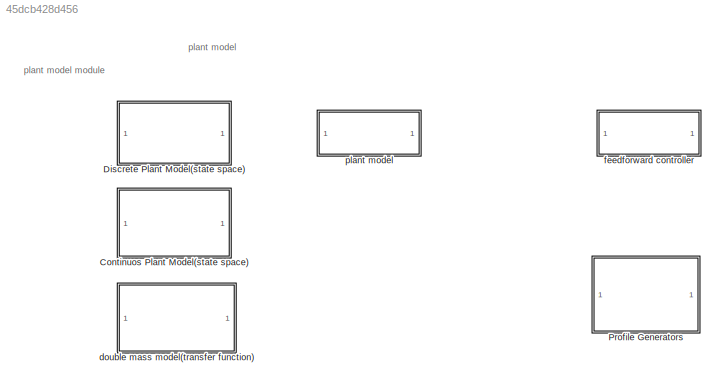
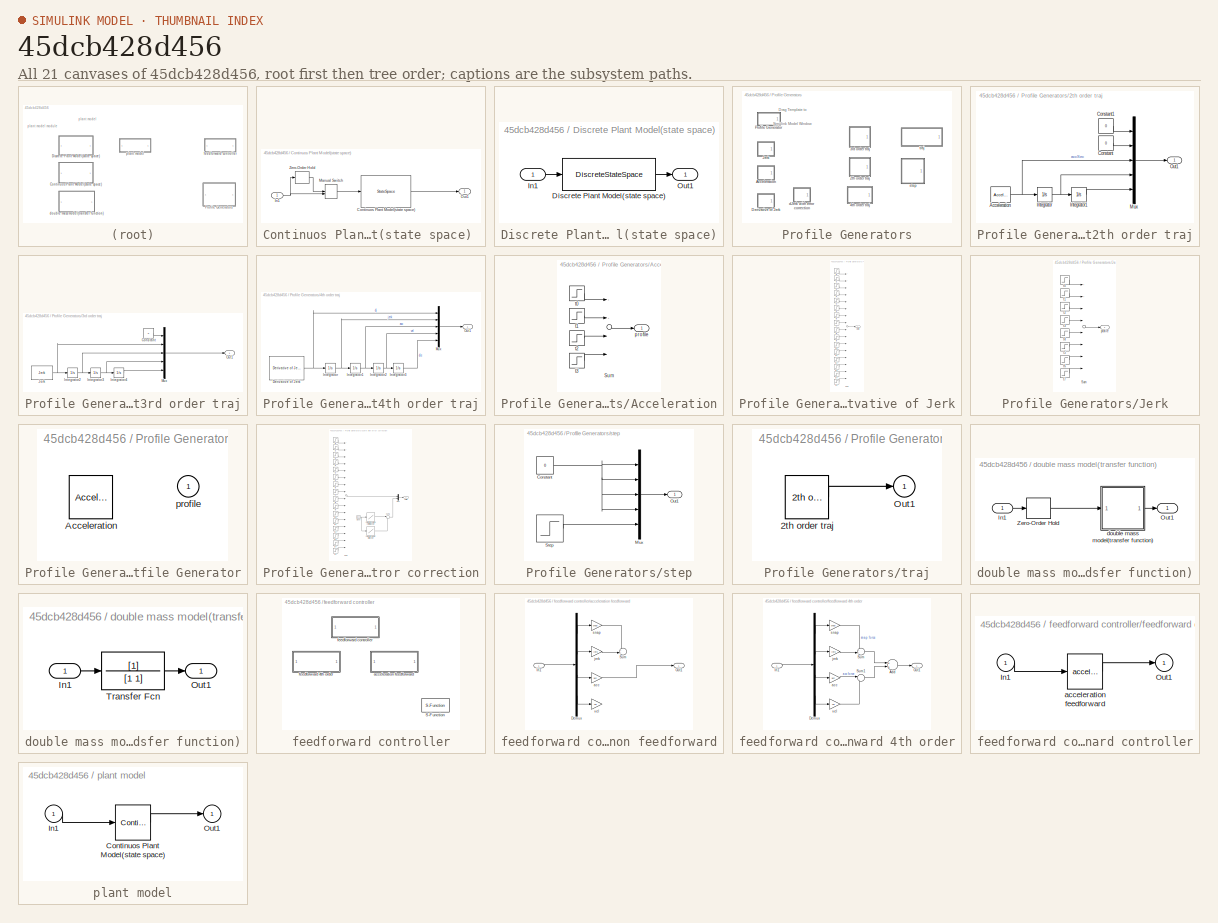
[diagram: thumbnail index - all 21 canvases of the model, root first then tree order]
MODEL slx_45dcb428d456
KIND library
CONFIG AbsTol = auto
CONFIG EnableMultiTasking = off
CONFIG FixedStep = auto
CONFIG MaxStep = auto
CONFIG MinStep = auto
CONFIG RelTol = 1e-3
CONFIG SampleTimeConstraint = Unconstrained
CONFIG Solver = VariableStepAuto
CONFIG SolverName = VariableStepAuto
CONFIG StartTime = 0.0
CONFIG StopTime = 10.0
BLOCK [SubSystem] Continuos Plant Model(state space) 
  Ports = [1, 1]
  RequestExecContextInheritance = off
  Variant = off
BLOCK [StateSpace] Continuos Plant Model(state space) /Continuos Plant Model(state space) 
  A = A
  B = B
  C = C
  D = D
  Ports = [1, 1]
  X0 = 0
BLOCK [Inport] Continuos Plant Model(state space) /In1
  IconDisplay = Port number
BLOCK [ManualSwitch] Continuos Plant Model(state space) /Manual Switch
  CurrentSetting = 0
BLOCK [Outport] Continuos Plant Model(state space) /Out1
  IconDisplay = Port number
BLOCK [ZeroOrderHold] Continuos Plant Model(state space) /Zero-Order Hold
  SampleTime = 2e-6
BLOCK [SubSystem] Discrete Plant Model(state space)
  Ports = [1, 1]
  RequestExecContextInheritance = off
  Variant = off
BLOCK [DiscreteStateSpace] Discrete Plant Model(state space)/Discrete Plant Model(state space)
  A = A_d
  B = B_d
  C = B_d
  D = D_d
  SampleTime = -1
BLOCK [Inport] Discrete Plant Model(state space)/In1
  IconDisplay = Port number
BLOCK [Outport] Discrete Plant Model(state space)/Out1
  IconDisplay = Port number
BLOCK [SubSystem] Profile Generators
  Ports = []
  RequestExecContextInheritance = off
  Variant = off
BLOCK [SubSystem] Profile Generators/2th order traj
  Ports = [0, 1]
  RequestExecContextInheritance = off
  Variant = off
BLOCK [Reference] Profile Generators/2th order traj/Acceleration  REF=model_controller/Profile Generators/Acceleration  (lib defined in slx_45dcb428d456)
  Ports = [0, 1]
  SourceBlock = model_controller/Profile Generators/Acceleration
  SourceType = 2nd Order Profile Generator
BLOCK [Constant] Profile Generators/2th order traj/Constant
  Value = 0
BLOCK [Constant] Profile Generators/2th order traj/Constant1
  Value = 0
BLOCK [Integrator] Profile Generators/2th order traj/Integrator
  Ports = [1, 1]
BLOCK [Integrator] Profile Generators/2th order traj/Integrator1
  Ports = [1, 1]
BLOCK [Mux] Profile Generators/2th order traj/Mux
  DisplayOption = bar
  Inputs = 5
  Ports = [5, 1]
BLOCK [Outport] Profile Generators/2th order traj/Out1
  IconDisplay = Port number
BLOCK [SubSystem] Profile Generators/3rd order traj
  Ports = [0, 1]
  RequestExecContextInheritance = off
  Variant = off
BLOCK [Constant] Profile Generators/3rd order traj/Constant
  Value = 0
BLOCK [Integrator] Profile Generators/3rd order traj/Integrator2
  Ports = [1, 1]
BLOCK [Integrator] Profile Generators/3rd order traj/Integrator3
  Ports = [1, 1]
BLOCK [Integrator] Profile Generators/3rd order traj/Integrator4
  Ports = [1, 1]
BLOCK [Reference] Profile Generators/3rd order traj/Jerk  REF=model_controller/Profile Generators/Jerk  (lib defined in slx_45dcb428d456)
  Ports = [0, 1]
  SourceBlock = model_controller/Profile Generators/Jerk
  SourceType = 3d Order Profile Generator
BLOCK [Mux] Profile Generators/3rd order traj/Mux
  DisplayOption = bar
  Inputs = 5
  Ports = [5, 1]
BLOCK [Outport] Profile Generators/3rd order traj/Out1
  IconDisplay = Port number
BLOCK [SubSystem] Profile Generators/4th order traj
  Ports = [0, 1]
  RequestExecContextInheritance = off
  Variant = off
BLOCK [Reference] Profile Generators/4th order traj/Derivative of Jerk  REF=model_controller/Profile Generators/Derivative of Jerk  (lib defined in slx_45dcb428d456)
  Ports = [0, 1]
  SourceBlock = model_controller/Profile Generators/Derivative of Jerk
  SourceType = 4th Order Profile Generator
BLOCK [Integrator] Profile Generators/4th order traj/Integrator
  Ports = [1, 1]
BLOCK [Integrator] Profile Generators/4th order traj/Integrator1
  Ports = [1, 1]
BLOCK [Integrator] Profile Generators/4th order traj/Integrator2
  Ports = [1, 1]
BLOCK [Integrator] Profile Generators/4th order traj/Integrator3
  Ports = [1, 1]
BLOCK [Mux] Profile Generators/4th order traj/Mux
  DisplayOption = bar
  Inputs = 5
  Ports = [5, 1]
BLOCK [Outport] Profile Generators/4th order traj/Out1
  IconDisplay = Port number
BLOCK [SubSystem] Profile Generators/Acceleration
  Ports = [0, 1]
  RequestExecContextInheritance = off
  Variant = off
BLOCK [Sum] Profile Generators/Acceleration/Sum
  Inputs = 4
  Ports = [4, 1]
BLOCK [Outport] Profile Generators/Acceleration/profile
  IconDisplay = Port number
BLOCK [Step] Profile Generators/Acceleration/t0
  After = ad(1)
  SampleTime = 0
  Time = t0
BLOCK [Step] Profile Generators/Acceleration/t1
  After = -ad(1)
  SampleTime = 0
  Time = t0+t(1)
BLOCK [Step] Profile Generators/Acceleration/t2
  After = -ad(1)
  SampleTime = 0
  Time = t0+t(1)+t(2)
BLOCK [Step] Profile Generators/Acceleration/t3
  After = ad(1)
  SampleTime = 0
  Time = t0+2*t(1)+t(2)
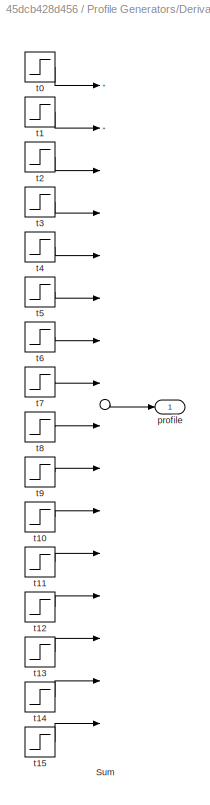
BLOCK [SubSystem] Profile Generators/Derivative of Jerk
  Ports = [0, 1]
  RequestExecContextInheritance = off
  Variant = off
BLOCK [Sum] Profile Generators/Derivative of Jerk/Sum
  Inputs = 16
  Ports = [16, 1]
BLOCK [Outport] Profile Generators/Derivative of Jerk/profile
  IconDisplay = Port number
BLOCK [Step] Profile Generators/Derivative of Jerk/t0
  After = dd(1)
  SampleTime = 0
  Time = t0
BLOCK [Step] Profile Generators/Derivative of Jerk/t1
  After = -dd(1)
  SampleTime = 0
  Time = t0+t(1)
BLOCK [Step] Profile Generators/Derivative of Jerk/t10
  After = dd(1)
  SampleTime = 0
  Time = t0+5*t(1)+3*t(2)+t(3)+t(4)
BLOCK [Step] Profile Generators/Derivative of Jerk/t11
  After = -dd(1)
  SampleTime = 0
  Time = t0+6*t(1)+3*t(2)+t(3)+t(4)
BLOCK [Step] Profile Generators/Derivative of Jerk/t12
  After = dd(1)
  SampleTime = 0
  Time = t0+6*t(1)+3*t(2)+2*t(3)+t(4)
BLOCK [Step] Profile Generators/Derivative of Jerk/t13
  After = -dd(1)
  SampleTime = 0
  Time = t0+7*t(1)+3*t(2)+2*t(3)+t(4)
BLOCK [Step] Profile Generators/Derivative of Jerk/t14
  After = -dd(1)
  SampleTime = 0
  Time = t0+7*t(1)+4*t(2)+2*t(3)+t(4)
BLOCK [Step] Profile Generators/Derivative of Jerk/t15
  After = dd(1)
  SampleTime = 0
  Time = t0+8*t(1)+4*t(2)+2*t(3)+t(4)
BLOCK [Step] Profile Generators/Derivative of Jerk/t2
  After = -dd(1)
  SampleTime = 0
  Time = t0+t(1)+t(2)
BLOCK [Step] Profile Generators/Derivative of Jerk/t3
  After = dd(1)
  SampleTime = 0
  Time = t0+2*t(1)+t(2)
BLOCK [Step] Profile Generators/Derivative of Jerk/t4
  After = -dd(1)
  SampleTime = 0
  Time = t0+2*t(1)+t(2)+t(3)
BLOCK [Step] Profile Generators/Derivative of Jerk/t5
  After = dd(1)
  SampleTime = 0
  Time = t0+3*t(1)+t(2)+t(3)
BLOCK [Step] Profile Generators/Derivative of Jerk/t6
  After = dd(1)
  SampleTime = 0
  Time = t0+3*t(1)+2*t(2)+t(3)
BLOCK [Step] Profile Generators/Derivative of Jerk/t7
  After = -dd(1)
  SampleTime = 0
  Time = t0+4*t(1)+2*t(2)+t(3)
BLOCK [Step] Profile Generators/Derivative of Jerk/t8
  After = -dd(1)
  SampleTime = 0
  Time = t0+4*t(1)+2*t(2)+t(3)+t(4)
BLOCK [Step] Profile Generators/Derivative of Jerk/t9
  After = dd(1)
  SampleTime = 0
  Time = t0+5*t(1)+2*t(2)+t(3)+t(4)
BLOCK [SubSystem] Profile Generators/Jerk
  Ports = [0, 1]
  RequestExecContextInheritance = off
  Variant = off
BLOCK [Sum] Profile Generators/Jerk/Sum
  Inputs = 8
  Ports = [8, 1]
BLOCK [Outport] Profile Generators/Jerk/profile
  IconDisplay = Port number
BLOCK [Step] Profile Generators/Jerk/t0
  After = jd(1)
  SampleTime = 0
  Time = t0
BLOCK [Step] Profile Generators/Jerk/t1
  After = -jd(1)
  SampleTime = 0
  Time = t0+t(1)
BLOCK [Step] Profile Generators/Jerk/t2
  After = -jd(1)
  SampleTime = 0
  Time = t0+t(1)+t(2)
BLOCK [Step] Profile Generators/Jerk/t3
  After = jd(1)
  SampleTime = 0
  Time = t0+2*t(1)+t(2)
BLOCK [Step] Profile Generators/Jerk/t4
  After = -jd(1)
  SampleTime = 0
  Time = t0+2*t(1)+t(2)+t(3)
BLOCK [Step] Profile Generators/Jerk/t5
  After = jd(1)
  SampleTime = 0
  Time = t0+3*t(1)+t(2)+t(3)
BLOCK [Step] Profile Generators/Jerk/t6
  After = jd(1)
  SampleTime = 0
  Time = t0+3*t(1)+2*t(2)+t(3)
BLOCK [Step] Profile Generators/Jerk/t7
  After = -jd(1)
  SampleTime = 0
  Time = t0+4*t(1)+2*t(2)+t(3)
BLOCK [SubSystem] Profile Generators/Profile Generator
  BlockChoice = Acceleration
  MemberBlocks = Acceleration,Derivative of Jerk,Jerk,dJerk with error correction
  Ports = [0, 1]
  RequestExecContextInheritance = off
  ShowPortLabels = none
  TemplateBlock = self
  Variant = off
BLOCK [Reference] Profile Generators/Profile Generator/Acceleration  REF=motion/Profile Generators/Acceleration  (lib defined in mdl_0f46438c83f5)
  Ports = [0, 1]
  SourceBlock = motion/Profile Generators/Acceleration
  SourceType = 2nd Order Profile Generator
BLOCK [Outport] Profile Generators/Profile Generator/profile
  IconDisplay = Port number
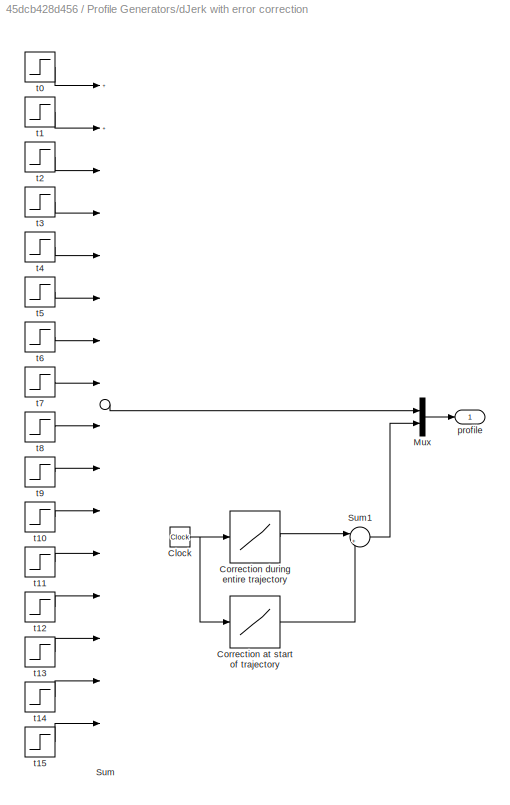
BLOCK [SubSystem] Profile Generators/dJerk with error correction
  Ports = [0, 1]
  RequestExecContextInheritance = off
  Variant = off
BLOCK [Clock] Profile Generators/dJerk with error correction/Clock
BLOCK [Lookup] Profile Generators/dJerk with error correction/Correction at start of trajectory
  InputValues = [ -1 t0 t0+abs(dd(3))*Ts  2*(t0+8*t(1)+4*t(2)+2*t(3)+t(4)) ]
  Table = [ 0 0 [1 1]*dd(3)*r]
BLOCK [Lookup] Profile Generators/dJerk with error correction/Correction during entire trajectory
  InputValues = [ -1 t0  t0+8*t(1)+4*t(2)+2*t(3)+t(4)  2*(t0+8*t(1)+4*t(2)+2*t(3)+t(4)) ]
  Table = [0 0 [1 1]*dd(2)*r]
BLOCK [Mux] Profile Generators/dJerk with error correction/Mux
  DisplayOption = bar
  Inputs = 2
  Ports = [2, 1]
BLOCK [Sum] Profile Generators/dJerk with error correction/Sum
  Inputs = 16
  Ports = [16, 1]
BLOCK [Sum] Profile Generators/dJerk with error correction/Sum1
  IconShape = round
  Inputs = |++
  Ports = [2, 1]
BLOCK [Outport] Profile Generators/dJerk with error correction/profile
  IconDisplay = Port number
BLOCK [Step] Profile Generators/dJerk with error correction/t0
  After = dd(1)
  SampleTime = 0
  Time = t0
BLOCK [Step] Profile Generators/dJerk with error correction/t1
  After = -dd(1)
  SampleTime = 0
  Time = t0+t(1)
BLOCK [Step] Profile Generators/dJerk with error correction/t10
  After = dd(1)
  SampleTime = 0
  Time = t0+5*t(1)+3*t(2)+t(3)+t(4)
BLOCK [Step] Profile Generators/dJerk with error correction/t11
  After = -dd(1)
  SampleTime = 0
  Time = t0+6*t(1)+3*t(2)+t(3)+t(4)
BLOCK [Step] Profile Generators/dJerk with error correction/t12
  After = dd(1)
  SampleTime = 0
  Time = t0+6*t(1)+3*t(2)+2*t(3)+t(4)
BLOCK [Step] Profile Generators/dJerk with error correction/t13
  After = -dd(1)
  SampleTime = 0
  Time = t0+7*t(1)+3*t(2)+2*t(3)+t(4)
BLOCK [Step] Profile Generators/dJerk with error correction/t14
  After = -dd(1)
  SampleTime = 0
  Time = t0+7*t(1)+4*t(2)+2*t(3)+t(4)
BLOCK [Step] Profile Generators/dJerk with error correction/t15
  After = dd(1)
  SampleTime = 0
  Time = t0+8*t(1)+4*t(2)+2*t(3)+t(4)
BLOCK [Step] Profile Generators/dJerk with error correction/t2
  After = -dd(1)
  SampleTime = 0
  Time = t0+t(1)+t(2)
BLOCK [Step] Profile Generators/dJerk with error correction/t3
  After = dd(1)
  SampleTime = 0
  Time = t0+2*t(1)+t(2)
BLOCK [Step] Profile Generators/dJerk with error correction/t4
  After = -dd(1)
  SampleTime = 0
  Time = t0+2*t(1)+t(2)+t(3)
BLOCK [Step] Profile Generators/dJerk with error correction/t5
  After = dd(1)
  SampleTime = 0
  Time = t0+3*t(1)+t(2)+t(3)
BLOCK [Step] Profile Generators/dJerk with error correction/t6
  After = dd(1)
  SampleTime = 0
  Time = t0+3*t(1)+2*t(2)+t(3)
BLOCK [Step] Profile Generators/dJerk with error correction/t7
  After = -dd(1)
  SampleTime = 0
  Time = t0+4*t(1)+2*t(2)+t(3)
BLOCK [Step] Profile Generators/dJerk with error correction/t8
  After = -dd(1)
  SampleTime = 0
  Time = t0+4*t(1)+2*t(2)+t(3)+t(4)
BLOCK [Step] Profile Generators/dJerk with error correction/t9
  After = dd(1)
  SampleTime = 0
  Time = t0+5*t(1)+2*t(2)+t(3)+t(4)
BLOCK [SubSystem] Profile Generators/step
  Ports = [0, 1]
  RequestExecContextInheritance = off
  Variant = off
BLOCK [Constant] Profile Generators/step/Constant
  Value = 0
BLOCK [Mux] Profile Generators/step/Mux
  DisplayOption = bar
  Inputs = 5
  Ports = [5, 1]
BLOCK [Outport] Profile Generators/step/Out1
  IconDisplay = Port number
BLOCK [Step] Profile Generators/step/Step
  After = vf
  Before = v0
  SampleTime = Ts
  Time = t
BLOCK [SubSystem] Profile Generators/traj
  BlockChoice = 2th order traj
  MemberBlocks = 2th order traj,3rd order traj,4th order traj,step
  Ports = [0, 1]
  RequestExecContextInheritance = off
  TemplateBlock = self
  Variant = off
BLOCK [Reference] Profile Generators/traj/2th order traj  REF=model_controller/Profile Generators/2th order traj  (lib defined in slx_45dcb428d456)
  Ports = [0, 1]
  SourceBlock = model_controller/Profile Generators/2th order traj
  SourceType = 2nd Order Profile Generator
BLOCK [Outport] Profile Generators/traj/Out1
  IconDisplay = Port number
BLOCK [SubSystem] double mass model(transfer function)
  Ports = [1, 1]
  RequestExecContextInheritance = off
  Variant = off
BLOCK [Inport] double mass model(transfer function)/In1
  IconDisplay = Port number
BLOCK [Outport] double mass model(transfer function)/Out1
  IconDisplay = Port number
BLOCK [ZeroOrderHold] double mass model(transfer function)/Zero-Order Hold
  SampleTime = -1
BLOCK [SubSystem] double mass model(transfer function)/double mass model(transfer function)
  Ports = [1, 1]
  RequestExecContextInheritance = off
  Variant = off
BLOCK [Inport] double mass model(transfer function)/double mass model(transfer function)/In1
  IconDisplay = Port number
BLOCK [Outport] double mass model(transfer function)/double mass model(transfer function)/Out1
  IconDisplay = Port number
BLOCK [TransferFcn] double mass model(transfer function)/double mass model(transfer function)/Transfer Fcn
  Denominator = [1 1]
BLOCK [SubSystem] feedforward controller
  Ports = []
  RequestExecContextInheritance = off
  Variant = off
BLOCK [S-Function] feedforward controller/S-Function
  EnableBusSupport = off
  FunctionName = adaptiveFeedforward
  Parameters = paraNum
  Ports = [1, 1]
  SFcnIsStateOwnerBlock = off
  SFunctionDeploymentMode = off
BLOCK [SubSystem] feedforward controller/acceleration feedforward
  Ports = [1, 1]
  RequestExecContextInheritance = off
  Variant = off
BLOCK [Demux] feedforward controller/acceleration feedforward/Demux
  DisplayOption = bar
  Ports = [1, 4]
BLOCK [Inport] feedforward controller/acceleration feedforward/In1
  IconDisplay = Port number
BLOCK [Outport] feedforward controller/acceleration feedforward/Out1
  IconDisplay = Port number
BLOCK [Sum] feedforward controller/acceleration feedforward/Sum
  IconShape = round
  InputSameDT = off
  Inputs = ++|
  OutDataTypeStr = Inherit: Inherit via internal rule
  Ports = [2, 1]
  SaturateOnIntegerOverflow = off
BLOCK [Gain] feedforward controller/acceleration feedforward/acc
  Gain = acc
  OutDataTypeStr = Inherit: Inherit via internal rule
  ParamDataTypeStr = Inherit: Inherit via internal rule
  SaturateOnIntegerOverflow = off
BLOCK [Gain] feedforward controller/acceleration feedforward/jerk
  Gain = jerk
  OutDataTypeStr = Inherit: Inherit via internal rule
  ParamDataTypeStr = Inherit: Inherit via internal rule
  SaturateOnIntegerOverflow = off
BLOCK [Gain] feedforward controller/acceleration feedforward/snap
  Gain = snap
  OutDataTypeStr = Inherit: Inherit via internal rule
  ParamDataTypeStr = Inherit: Inherit via internal rule
  SaturateOnIntegerOverflow = off
BLOCK [Gain] feedforward controller/acceleration feedforward/vel
  Gain = vel
  OutDataTypeStr = Inherit: Inherit via internal rule
  ParamDataTypeStr = Inherit: Inherit via internal rule
  SaturateOnIntegerOverflow = off
BLOCK [SubSystem] feedforward controller/feedforward 4th order
  Ports = [1, 1]
  RequestExecContextInheritance = off
  Variant = off
BLOCK [Sum] feedforward controller/feedforward 4th order/Add
  InputSameDT = off
  OutDataTypeStr = Inherit: Inherit via internal rule
  Ports = [2, 1]
  SaturateOnIntegerOverflow = off
BLOCK [Demux] feedforward controller/feedforward 4th order/Demux
  DisplayOption = bar
  Ports = [1, 4]
BLOCK [Inport] feedforward controller/feedforward 4th order/In1
  IconDisplay = Port number
BLOCK [Outport] feedforward controller/feedforward 4th order/Out1
  IconDisplay = Port number
BLOCK [Sum] feedforward controller/feedforward 4th order/Sum
  IconShape = round
  InputSameDT = off
  Inputs = ++|
  OutDataTypeStr = Inherit: Inherit via internal rule
  Ports = [2, 1]
  SaturateOnIntegerOverflow = off
BLOCK [Sum] feedforward controller/feedforward 4th order/Sum1
  IconShape = round
  InputSameDT = off
  Inputs = |++
  OutDataTypeStr = Inherit: Inherit via internal rule
  Ports = [2, 1]
  SaturateOnIntegerOverflow = off
BLOCK [Gain] feedforward controller/feedforward 4th order/acc
  Gain = acc
  OutDataTypeStr = Inherit: Inherit via internal rule
  ParamDataTypeStr = Inherit: Inherit via internal rule
  SaturateOnIntegerOverflow = off
BLOCK [Gain] feedforward controller/feedforward 4th order/jerk
  Gain = jerk
  OutDataTypeStr = Inherit: Inherit via internal rule
  ParamDataTypeStr = Inherit: Inherit via internal rule
  SaturateOnIntegerOverflow = off
BLOCK [Gain] feedforward controller/feedforward 4th order/snap
  Gain = snap
  OutDataTypeStr = Inherit: Inherit via internal rule
  ParamDataTypeStr = Inherit: Inherit via internal rule
  SaturateOnIntegerOverflow = off
BLOCK [Gain] feedforward controller/feedforward 4th order/vel
  Gain = vel
  OutDataTypeStr = Inherit: Inherit via internal rule
  ParamDataTypeStr = Inherit: Inherit via internal rule
  SaturateOnIntegerOverflow = off
BLOCK [SubSystem] feedforward controller/feedforward controller
  BlockChoice = acceleration feedforward
  MemberBlocks = acceleration feedforward,feedforward 4th order
  Ports = [1, 1]
  RequestExecContextInheritance = off
  TemplateBlock = self
  Variant = off
BLOCK [Inport] feedforward controller/feedforward controller/In1
  IconDisplay = Port number
BLOCK [Outport] feedforward controller/feedforward controller/Out1
  IconDisplay = Port number
BLOCK [Reference] feedforward controller/feedforward controller/acceleration feedforward  REF=model_controller/feedforward controller/acceleration feedforward  (lib defined in slx_45dcb428d456)
  Ports = [1, 1]
  SourceBlock = model_controller/feedforward controller/acceleration feedforward
BLOCK [SubSystem] plant model
  BlockChoice = Continuos Plant Model(state space)
  MemberBlocks = Continuos Plant Model(state space) ,Discrete Plant Model(state space),double mass model(transfer function)
  Ports = [1, 1]
  RequestExecContextInheritance = off
  TemplateBlock = self
  Variant = off
BLOCK [Reference] plant model/Continuos Plant Model(state space)   REF=model_controller/Continuos Plant Model(state space)   (lib defined in slx_45dcb428d456)
  Ports = [1, 1]
  SourceBlock = model_controller/Continuos Plant Model(state space)
BLOCK [Inport] plant model/In1
  IconDisplay = Port number
BLOCK [Outport] plant model/Out1
  IconDisplay = Port number
ANNOTATION (root): plant model
ANNOTATION (root): plant model module
ANNOTATION Profile Generators: Drag Template to Simulink Model Window
LINE Continuos Plant Model(state space) /Continuos Plant Model(state space) :1 -> Continuos Plant Model(state space) /Out1:1
NET Continuos Plant Model(state space) /In1:1 -> Continuos Plant Model(state space) /Manual Switch:2, Continuos Plant Model(state space) /Zero-Order Hold:1
LINE Continuos Plant Model(state space) /Manual Switch:1 -> Continuos Plant Model(state space) /Continuos Plant Model(state space) :1
LINE Continuos Plant Model(state space) /Zero-Order Hold:1 -> Continuos Plant Model(state space) /Manual Switch:1
LINE Discrete Plant Model(state space)/Discrete Plant Model(state space):1 -> Discrete Plant Model(state space)/Out1:1
LINE Discrete Plant Model(state space)/In1:1 -> Discrete Plant Model(state space)/Discrete Plant Model(state space):1
NET Profile Generators/2th order traj/Acceleration:1 -> Profile Generators/2th order traj/Integrator:1, Profile Generators/2th order traj/Mux:3
LINE Profile Generators/2th order traj/Constant1:1 -> Profile Generators/2th order traj/Mux:1
LINE Profile Generators/2th order traj/Constant:1 -> Profile Generators/2th order traj/Mux:2
LINE Profile Generators/2th order traj/Integrator1:1 -> Profile Generators/2th order traj/Mux:5
NET Profile Generators/2th order traj/Integrator:1 -> Profile Generators/2th order traj/Integrator1:1, Profile Generators/2th order traj/Mux:4
LINE Profile Generators/2th order traj/Mux:1 -> Profile Generators/2th order traj/Out1:1
LINE Profile Generators/3rd order traj/Constant:1 -> Profile Generators/3rd order traj/Mux:1
NET Profile Generators/3rd order traj/Integrator2:1 -> Profile Generators/3rd order traj/Integrator3:1, Profile Generators/3rd order traj/Mux:3
NET Profile Generators/3rd order traj/Integrator3:1 -> Profile Generators/3rd order traj/Integrator4:1, Profile Generators/3rd order traj/Mux:4
LINE Profile Generators/3rd order traj/Integrator4:1 -> Profile Generators/3rd order traj/Mux:5
NET Profile Generators/3rd order traj/Jerk:1 -> Profile Generators/3rd order traj/Integrator2:1, Profile Generators/3rd order traj/Mux:2
LINE Profile Generators/3rd order traj/Mux:1 -> Profile Generators/3rd order traj/Out1:1
NET Profile Generators/4th order traj/Derivative of Jerk:1 -> Profile Generators/4th order traj/Integrator:1, Profile Generators/4th order traj/Mux:1
NET Profile Generators/4th order traj/Integrator1:1 -> Profile Generators/4th order traj/Integrator2:1, Profile Generators/4th order traj/Mux:3
NET Profile Generators/4th order traj/Integrator2:1 -> Profile Generators/4th order traj/Integrator3:1, Profile Generators/4th order traj/Mux:4
LINE Profile Generators/4th order traj/Integrator3:1 -> Profile Generators/4th order traj/Mux:5
NET Profile Generators/4th order traj/Integrator:1 -> Profile Generators/4th order traj/Integrator1:1, Profile Generators/4th order traj/Mux:2
LINE Profile Generators/4th order traj/Mux:1 -> Profile Generators/4th order traj/Out1:1
LINE Profile Generators/Acceleration/Sum:1 -> Profile Generators/Acceleration/profile:1
LINE Profile Generators/Acceleration/t0:1 -> Profile Generators/Acceleration/Sum:1
LINE Profile Generators/Acceleration/t1:1 -> Profile Generators/Acceleration/Sum:2
LINE Profile Generators/Acceleration/t2:1 -> Profile Generators/Acceleration/Sum:3
LINE Profile Generators/Acceleration/t3:1 -> Profile Generators/Acceleration/Sum:4
NET Profile Generators/dJerk with error correction/Clock:1 -> Profile Generators/dJerk with error correction/Correction at start of trajectory:1, Profile Generators/dJerk with error correction/Correction during entire trajectory:1
LINE Profile Generators/dJerk with error correction/Correction at start of trajectory:1 -> Profile Generators/dJerk with error correction/Sum1:2
LINE Profile Generators/dJerk with error correction/Correction during entire trajectory:1 -> Profile Generators/dJerk with error correction/Sum1:1
LINE Profile Generators/dJerk with error correction/Mux:1 -> Profile Generators/dJerk with error correction/profile:1
LINE Profile Generators/dJerk with error correction/Sum1:1 -> Profile Generators/dJerk with error correction/Mux:2
LINE Profile Generators/dJerk with error correction/Sum:1 -> Profile Generators/dJerk with error correction/Mux:1
LINE Profile Generators/dJerk with error correction/t0:1 -> Profile Generators/dJerk with error correction/Sum:1
LINE Profile Generators/dJerk with error correction/t10:1 -> Profile Generators/dJerk with error correction/Sum:11
LINE Profile Generators/dJerk with error correction/t11:1 -> Profile Generators/dJerk with error correction/Sum:12
LINE Profile Generators/dJerk with error correction/t12:1 -> Profile Generators/dJerk with error correction/Sum:13
LINE Profile Generators/dJerk with error correction/t13:1 -> Profile Generators/dJerk with error correction/Sum:14
LINE Profile Generators/dJerk with error correction/t14:1 -> Profile Generators/dJerk with error correction/Sum:15
LINE Profile Generators/dJerk with error correction/t15:1 -> Profile Generators/dJerk with error correction/Sum:16
LINE Profile Generators/dJerk with error correction/t1:1 -> Profile Generators/dJerk with error correction/Sum:2
LINE Profile Generators/dJerk with error correction/t2:1 -> Profile Generators/dJerk with error correction/Sum:3
LINE Profile Generators/dJerk with error correction/t3:1 -> Profile Generators/dJerk with error correction/Sum:4
LINE Profile Generators/dJerk with error correction/t4:1 -> Profile Generators/dJerk with error correction/Sum:5
LINE Profile Generators/dJerk with error correction/t5:1 -> Profile Generators/dJerk with error correction/Sum:6
LINE Profile Generators/dJerk with error correction/t6:1 -> Profile Generators/dJerk with error correction/Sum:7
LINE Profile Generators/dJerk with error correction/t7:1 -> Profile Generators/dJerk with error correction/Sum:8
LINE Profile Generators/dJerk with error correction/t8:1 -> Profile Generators/dJerk with error correction/Sum:9
LINE Profile Generators/dJerk with error correction/t9:1 -> Profile Generators/dJerk with error correction/Sum:10
NET Profile Generators/step/Constant:1 -> Profile Generators/step/Mux:1, Profile Generators/step/Mux:2, Profile Generators/step/Mux:3, Profile Generators/step/Mux:4
LINE Profile Generators/step/Mux:1 -> Profile Generators/step/Out1:1
LINE Profile Generators/step/Step:1 -> Profile Generators/step/Mux:5
LINE Profile Generators/traj/2th order traj:1 -> Profile Generators/traj/Out1:1
LINE double mass model(transfer function)/In1:1 -> double mass model(transfer function)/Zero-Order Hold:1
LINE double mass model(transfer function)/Zero-Order Hold:1 -> double mass model(transfer function)/double mass model(transfer function):1
LINE double mass model(transfer function)/double mass model(transfer function)/In1:1 -> double mass model(transfer function)/double mass model(transfer function)/Transfer Fcn:1
LINE double mass model(transfer function)/double mass model(transfer function)/Transfer Fcn:1 -> double mass model(transfer function)/double mass model(transfer function)/Out1:1
LINE double mass model(transfer function)/double mass model(transfer function):1 -> double mass model(transfer function)/Out1:1
LINE feedforward controller/acceleration feedforward/Demux:1 -> feedforward controller/acceleration feedforward/snap:1
LINE feedforward controller/acceleration feedforward/Demux:2 -> feedforward controller/acceleration feedforward/jerk:1
LINE feedforward controller/acceleration feedforward/Demux:3 -> feedforward controller/acceleration feedforward/acc:1
LINE feedforward controller/acceleration feedforward/Demux:4 -> feedforward controller/acceleration feedforward/vel:1
LINE feedforward controller/acceleration feedforward/In1:1 -> feedforward controller/acceleration feedforward/Demux:1
LINE feedforward controller/acceleration feedforward/acc:1 -> feedforward controller/acceleration feedforward/Out1:1
LINE feedforward controller/acceleration feedforward/jerk:1 -> feedforward controller/acceleration feedforward/Sum:2
LINE feedforward controller/acceleration feedforward/snap:1 -> feedforward controller/acceleration feedforward/Sum:1
LINE feedforward controller/feedforward 4th order/Add:1 -> feedforward controller/feedforward 4th order/Out1:1
LINE feedforward controller/feedforward 4th order/Demux:1 -> feedforward controller/feedforward 4th order/snap:1
LINE feedforward controller/feedforward 4th order/Demux:2 -> feedforward controller/feedforward 4th order/jerk:1
LINE feedforward controller/feedforward 4th order/Demux:3 -> feedforward controller/feedforward 4th order/acc:1
LINE feedforward controller/feedforward 4th order/Demux:4 -> feedforward controller/feedforward 4th order/vel:1
LINE feedforward controller/feedforward 4th order/In1:1 -> feedforward controller/feedforward 4th order/Demux:1
LINE feedforward controller/feedforward 4th order/Sum1:1 -> feedforward controller/feedforward 4th order/Add:2
LINE feedforward controller/feedforward 4th order/Sum:1 -> feedforward controller/feedforward 4th order/Add:1
LINE feedforward controller/feedforward 4th order/acc:1 -> feedforward controller/feedforward 4th order/Sum1:1
LINE feedforward controller/feedforward 4th order/jerk:1 -> feedforward controller/feedforward 4th order/Sum:2
LINE feedforward controller/feedforward 4th order/snap:1 -> feedforward controller/feedforward 4th order/Sum:1
LINE feedforward controller/feedforward 4th order/vel:1 -> feedforward controller/feedforward 4th order/Sum1:2
LINE feedforward controller/feedforward controller/In1:1 -> feedforward controller/feedforward controller/acceleration feedforward:1
LINE feedforward controller/feedforward controller/acceleration feedforward:1 -> feedforward controller/feedforward controller/Out1:1
LINE plant model/Continuos Plant Model(state space) :1 -> plant model/Out1:1
LINE plant model/In1:1 -> plant model/Continuos Plant Model(state space) :1
note: NET lines group one-source signal fan-out (src -> all destinations, sorted); 1:1 wires keep LINE
